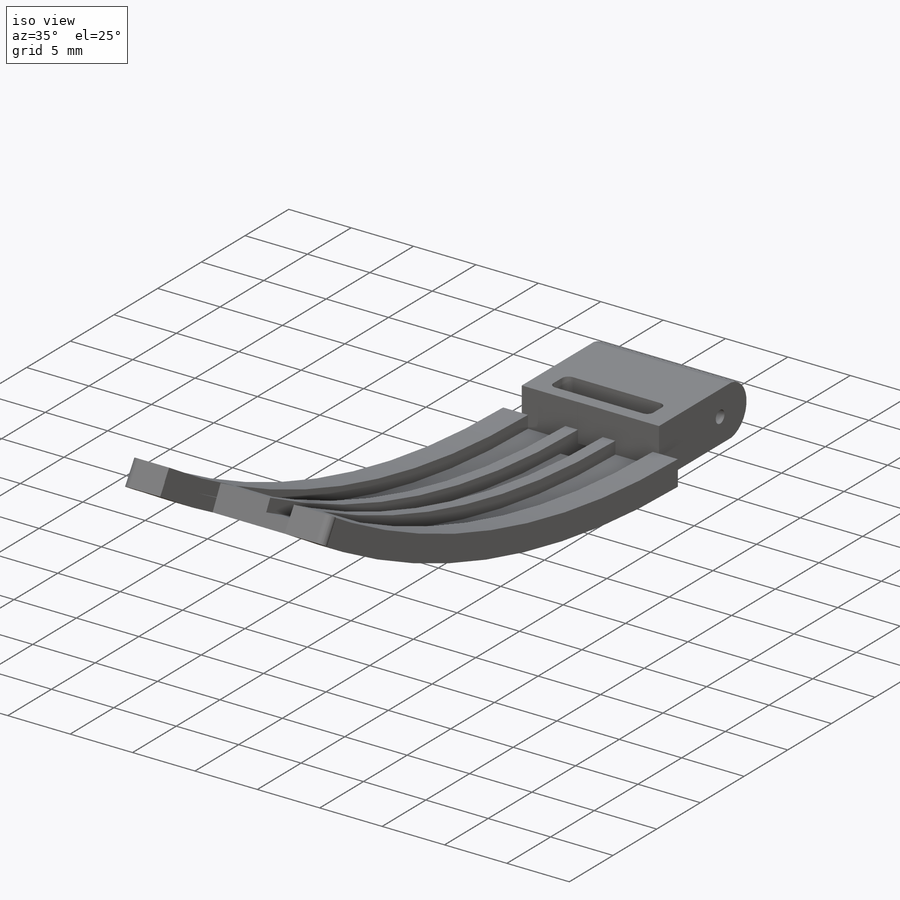
[diagram: iso view]
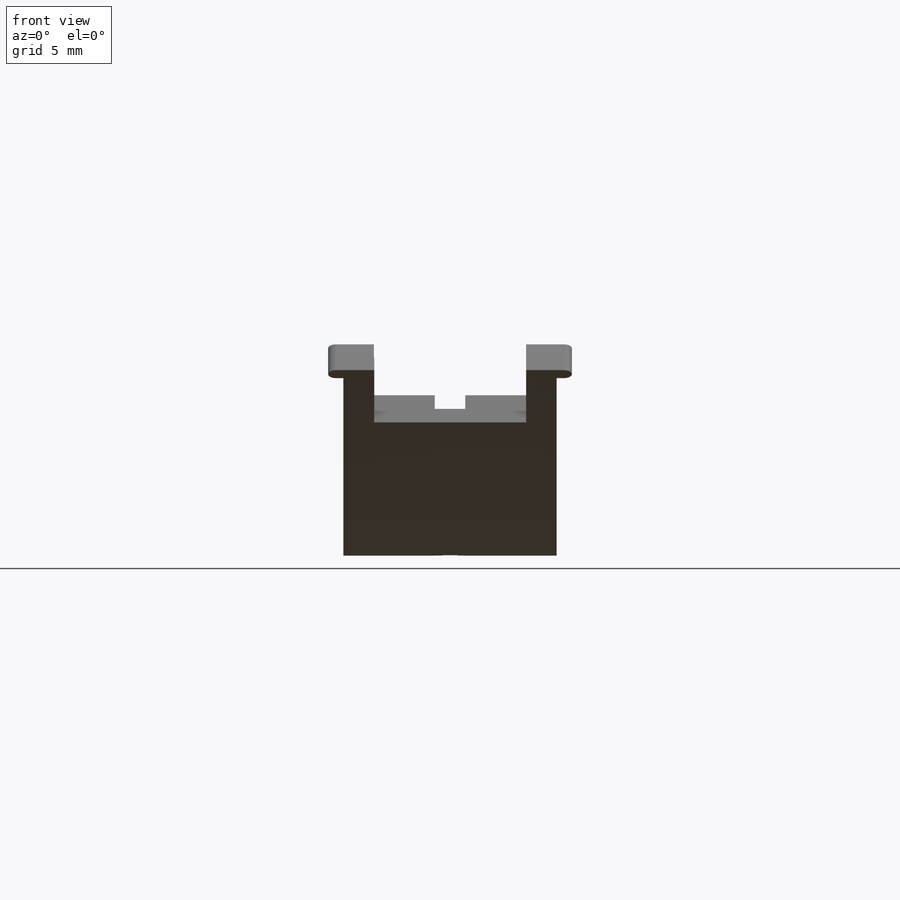
[diagram: front view]
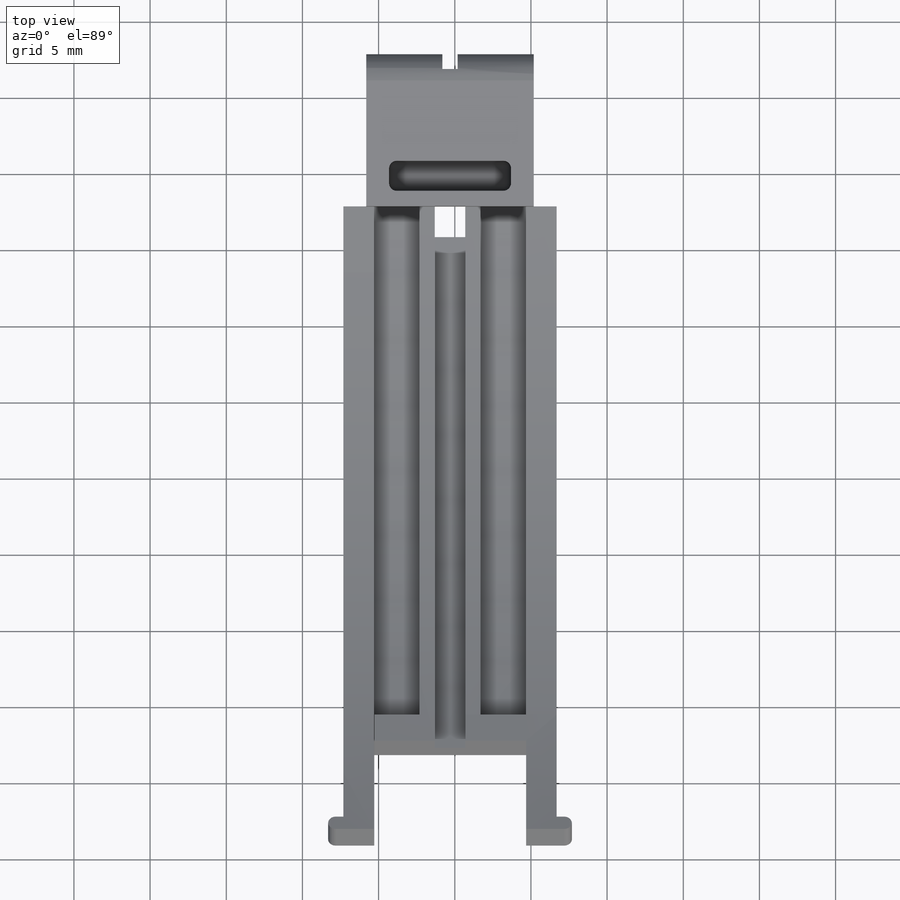
[diagram: top view]
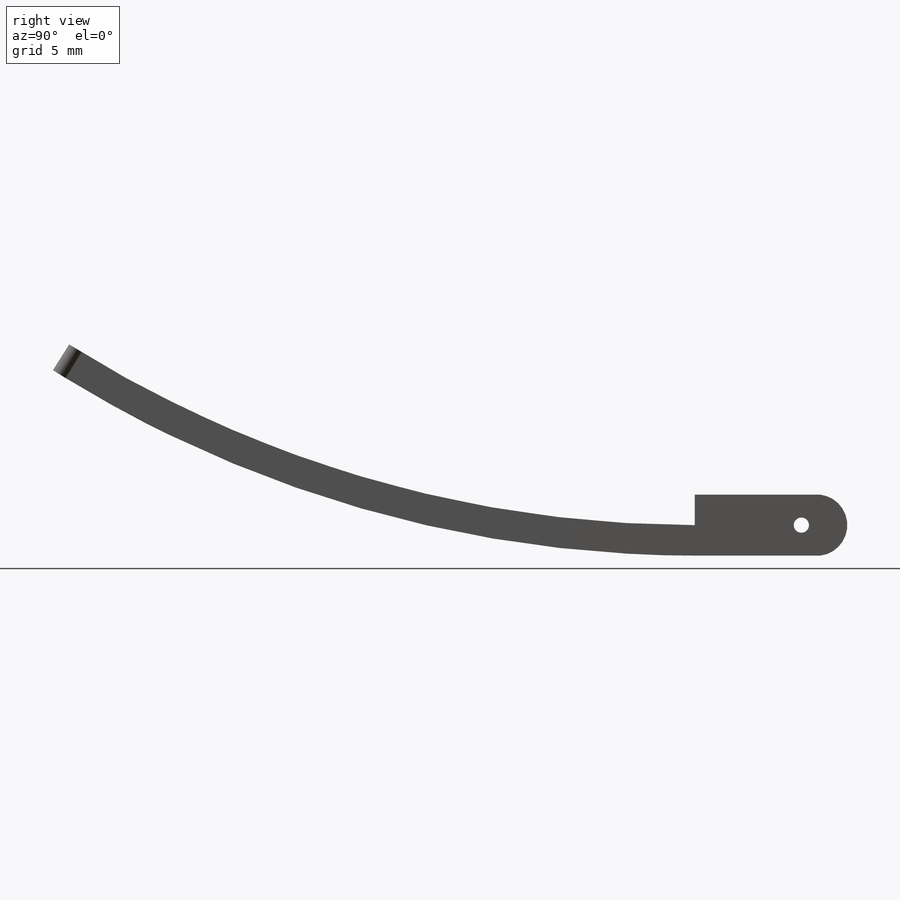
[diagram: right view]
SOLIDWORKS PART (.sldprt)
format: sldprt  version: not decoded by parser v0  size: 549,888 bytes
history: native  units: mm
features: sketch x13, cut_extrude x7, plane x4, fillet x4, revolve x3, material x1, extrude x1, cut_revolve x1 (+9 scaffold rows collapsed)
feature tree (43):
  scaffold x9  (default folders/planes/origin — collapsed)
  material  "Material <sin especificar>"
  plane  "Alzado"
  plane  "Planta"
  plane  "Vista lateral"
  sketch  "Croquis1"  dims[D1=10.0mm D2=11.0mm]
  extrude  "Saliente-Extruir1"  Depth=4mm
  sketch  "Croquis2"  dims[D2=1.0mm D1=7.0mm D3=3.0mm]
  cut_extrude  "Cortar-Extruir1"  Depth=12mm
  sketch  "Croquis3"  dims[D1=1.0mm D2=1.5mm D3=1.5mm]
  cut_extrude  "Cortar-Extruir2"  Depth=2mm
  fillet  "Redondeo6"  Radius=0.5mm
  fillet  "Redondeo8"  Radius=0.5mm
  sketch  "Croquis4"  dims[D1=2.0mm]
  cut_extrude  "Cortar-Extruir3"  Depth=20mm
  sketch  "Croquis5"  dims[D1=2.0mm D2=0.5mm D3=0.5mm D4=1.0mm D5=1.0mm D6=5.0mm D7=5.0mm]
  cut_extrude  "Cortar-Extruir4"  Depth=1mm
  sketch  "Croquis6"
  sketch  "Croquis7"  dims[D1=~0.249234mm D2=1.0mm D3=~0.747728mm]
  cut_extrude  "Cortar-Extruir6"  Depth=5mm
  plane  "Plano1"
  sketch  "Croquis9"  dims[c1.D1=1.0mm c1.D2=1.0mm c1.D3=2.0mm c2.D2=1.0mm c2.D1=4.5mm]
  cut_extrude  "Cortar-Extruir7"  Depth=1mm
  fillet  "Redondeo10"  Radius=0.25mm
  sketch  "Croquis11"  dims[c1.D1=2.0mm c1.D2=2.0mm c1.D3=2.0mm c1.D4=3.0mm c1.D5=1.0mm c1.D6=1.0mm c2.D5=~4.000003mm c2.D3=1.0mm c3.D5=2.0mm c3.D6=1.0mm c3.D1=1.0mm c3.D2=1.0mm c3.D3=3.0mm c3.D4=3.0mm c4.D5=14.0mm c4.D6=3.0mm c4.D1=6.0mm c4.D2=6.0mm c4.D3=2.0mm c4.D4=2.0mm c5.D5=2.0mm c5.D6=3.0mm c5.D7=3.0mm c5.D8=1.0mm c5.D9=1.0mm c5.D10=2.0mm c5.D11=79.0mm c5.D12=~5.25786mm c5.D13=~5.74214mm]
  revolve  "Revolución5"  Angle=32.23deg
  sketch  "Croquis13"  dims[D1=2.0mm]
  cut_extrude  "Cortar-Extruir13"  Depth=7mm
  sketch  "Croquis14"  dims[D1=79.0mm]
  cut_revolve  "Cortar-Revolución1"  Angle=5.013381deg
  sketch  "Croquis15"  dims[c1.D1=1.0mm c1.D2=~1.011708mm c2.D2=270.0deg c3.D2=1.0mm c3.D3=79.0mm]
  revolve  "Revolución6"  Angle=0.716197deg
  fillet  "Redondeo11"  Radius=0.5mm
  sketch  "Croquis16"  dims[c1.D1=~7.520843mm c1.D2=~7.520843mm c2.D1=79.0mm]
  revolve  "Revolución7"  Angle=1.432394deg
decode coverage: 28 of 29 modeling features carry decoded parameters
note: ~ marks probable driven/reference dimensions
note: suppression state not decoded; provenance and decode notes live in map.json
